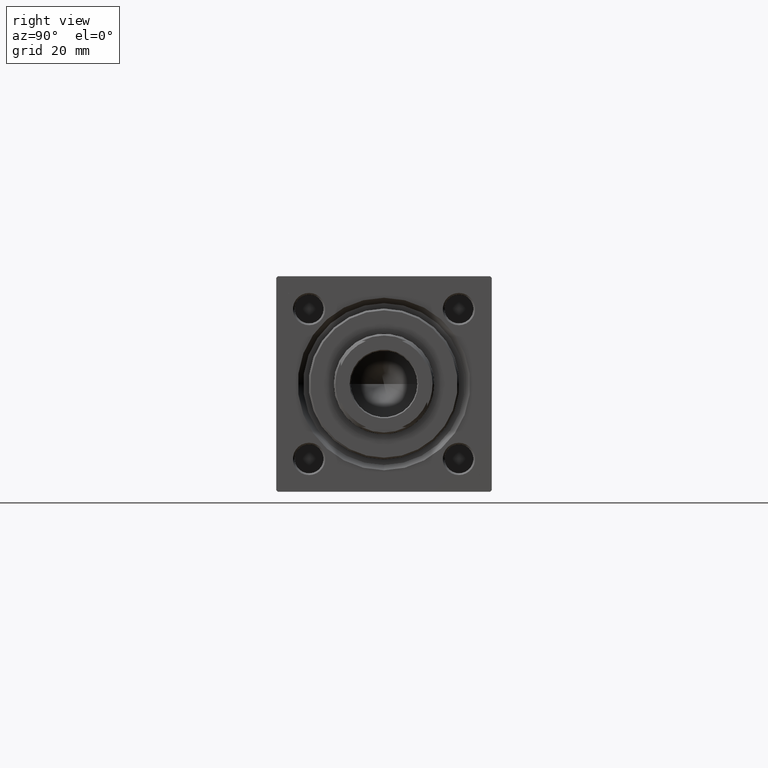
[diagram: clean part render]
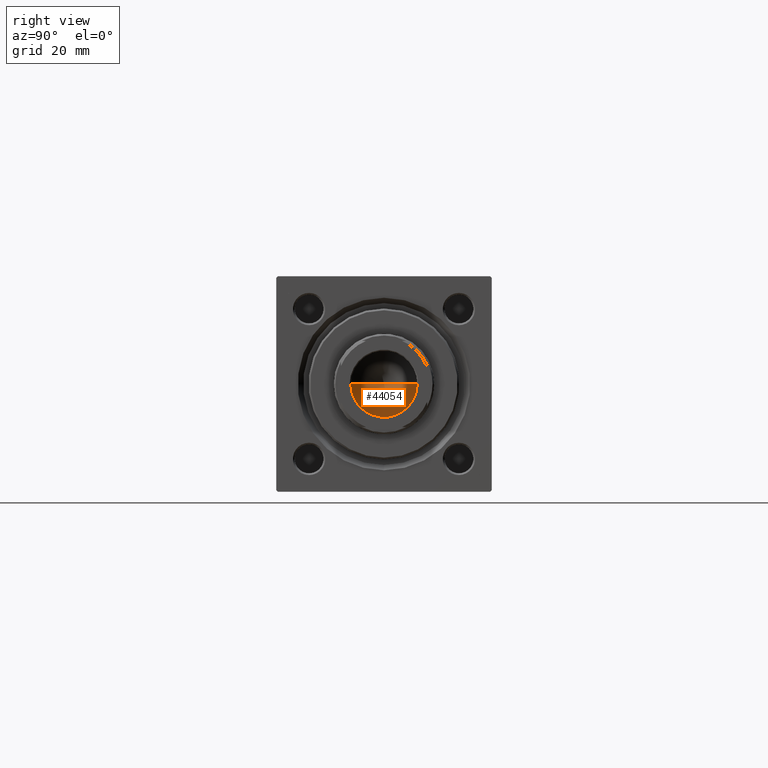
[diagram: same view with one face highlighted and labeled with its STEP entity id]
A machine part, right view. The second image highlights one B-rep face of the part: STEP entity #44054.
In plain terms, the highlighted conical surface has half-angle 59 deg.
Its self-contained STEP definition (entity closure, byte-faithful):
#354 = DIRECTION ( 'NONE',  ( -0.000000000000000000, -0.000000000000000000, 1.000000000000000000 ) ) ;
#909 = DIRECTION ( 'NONE',  ( 0.8571673007021117785, 0.000000000000000000, 0.5150380749100550437 ) ) ;
#2274 = EDGE_CURVE ( 'NONE', #17169, #34560, #28541, .T. ) ;
#4119 = DIRECTION ( 'NONE',  ( 1.000000000000000000, 0.000000000000000000, 0.000000000000000000 ) ) ;
#5699 = EDGE_CURVE ( 'NONE', #41375, #34560, #41782, .T. ) ;
#9702 = ORIENTED_EDGE ( 'NONE', *, *, #2274, .F. ) ;
#11936 = CARTESIAN_POINT ( 'NONE',  ( 9.249999999999992895, 0.000000000000000000, 101.0000000000000000 ) ) ;
#12004 = FACE_OUTER_BOUND ( 'NONE', #20423, .T. ) ;
#12998 = AXIS2_PLACEMENT_3D ( 'NONE', #42514, #354, #15813 ) ;
#15813 = DIRECTION ( 'NONE',  ( 1.000000000000000000, 0.000000000000000000, 0.000000000000000000 ) ) ;
#17169 = VERTEX_POINT ( 'NONE', #18171 ) ;
#18171 = CARTESIAN_POINT ( 'NONE',  ( -9.769621978240258809E-15, 0.000000000000000000, 95.44203927399506426 ) ) ;
#20423 = EDGE_LOOP ( 'NONE', ( #9702, #33890, #44980 ) ) ;
#22172 = VECTOR ( 'NONE', #909, 1000.000000000000000 ) ;
#23411 = CARTESIAN_POINT ( 'NONE',  ( 0.000000000000000000, 0.000000000000000000, 101.0000000000000000 ) ) ;
#25415 = CARTESIAN_POINT ( 'NONE',  ( -9.249999999999992895, 1.132798289211300712E-15, 101.0000000000000000 ) ) ;
#28541 = LINE ( 'NONE', #44051, #32764 ) ;
#30422 = AXIS2_PLACEMENT_3D ( 'NONE', #23411, #38906, #4119 ) ;
#32764 = VECTOR ( 'NONE', #39742, 1000.000000000000000 ) ;
#32839 = EDGE_CURVE ( 'NONE', #17169, #41375, #35687, .T. ) ;
#33890 = ORIENTED_EDGE ( 'NONE', *, *, #32839, .T. ) ;
#34560 = VERTEX_POINT ( 'NONE', #25415 ) ;
#35687 = LINE ( 'NONE', #43059, #22172 ) ;
#38906 = DIRECTION ( 'NONE',  ( -0.000000000000000000, -0.000000000000000000, 1.000000000000000000 ) ) ;
#39742 = DIRECTION ( 'NONE',  ( -0.8571673007021117785, 1.049727191138617956E-16, 0.5150380749100550437 ) ) ;
#41375 = VERTEX_POINT ( 'NONE', #11936 ) ;
#41782 = CIRCLE ( 'NONE', #30422, 9.249999999999992895 ) ;
#42514 = CARTESIAN_POINT ( 'NONE',  ( 0.000000000000000000, 0.000000000000000000, 101.0000000000000000 ) ) ;
#43030 = CONICAL_SURFACE ( 'NONE', #12998, 9.249999999999992895, 1.029744258676653423 ) ;
#43059 = CARTESIAN_POINT ( 'NONE',  ( 9.249999999999992895, 0.000000000000000000, 101.0000000000000000 ) ) ;
#44051 = CARTESIAN_POINT ( 'NONE',  ( -9.249999999999992895, 1.132798289211300712E-15, 101.0000000000000000 ) ) ;
#44054 = ADVANCED_FACE ( 'NONE', ( #12004 ), #43030, .F. ) ;
#44980 = ORIENTED_EDGE ( 'NONE', *, *, #5699, .T. ) ;